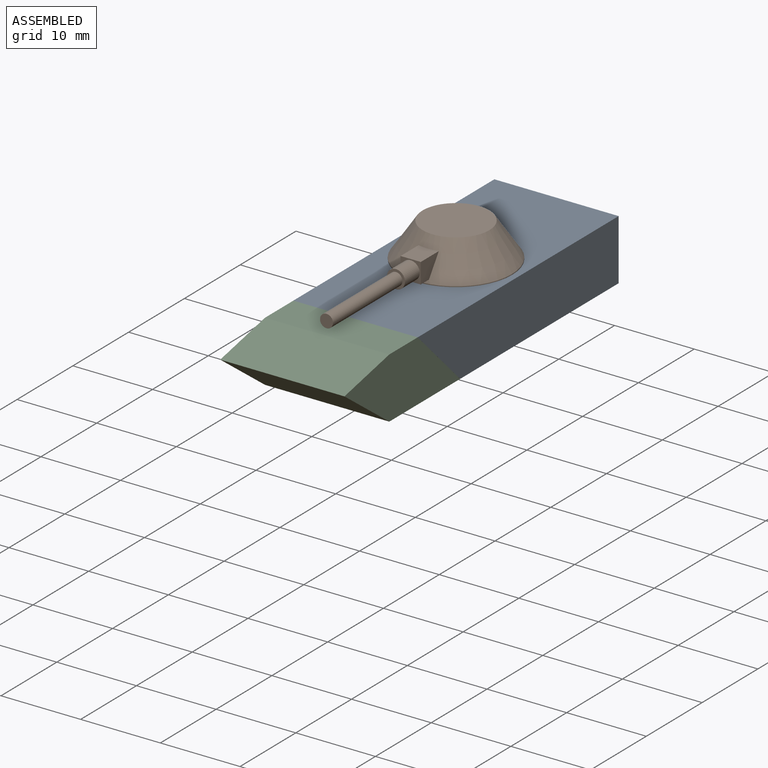
[diagram: assembled view]
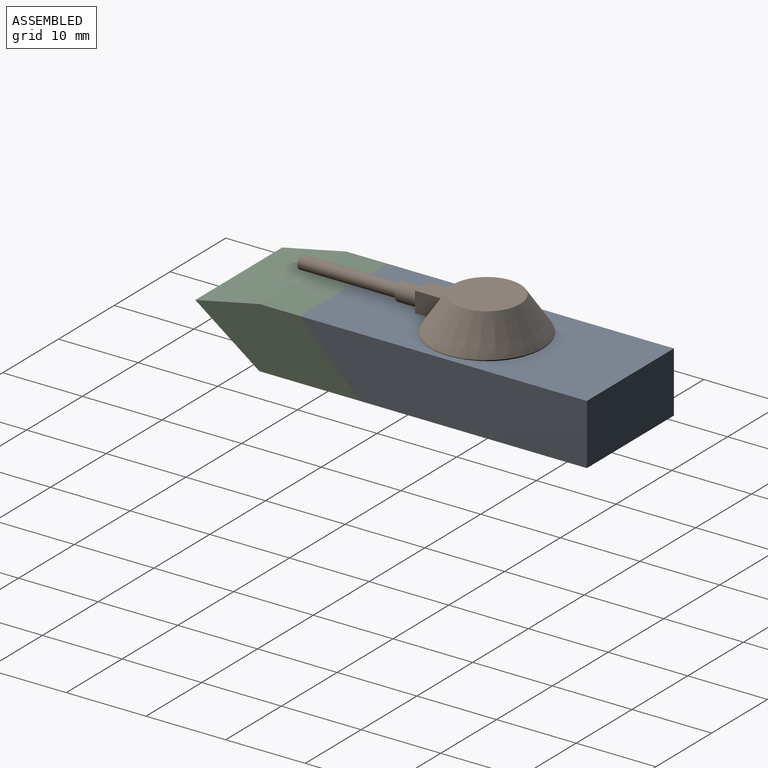
[diagram: assembled view, second angle]
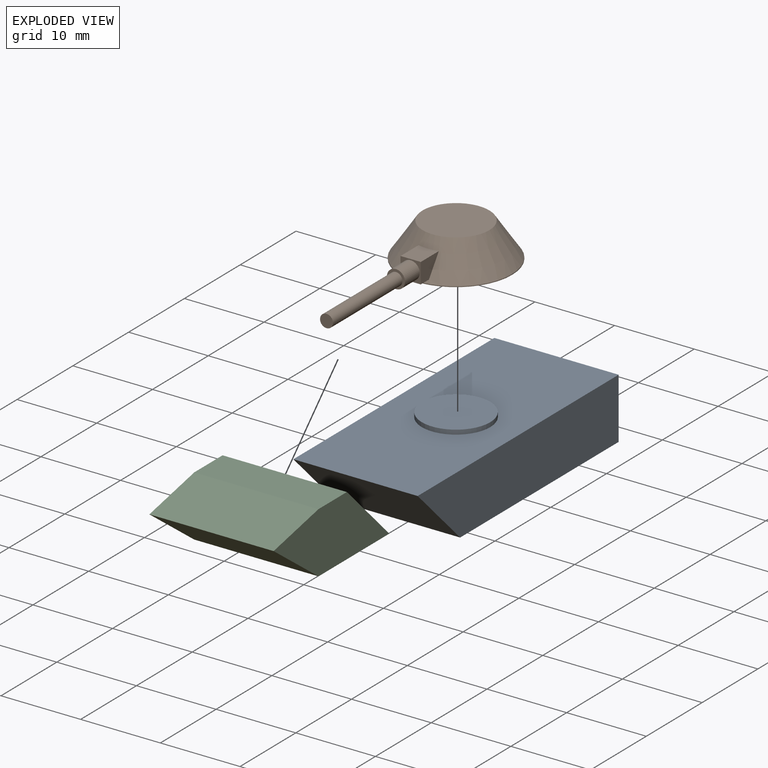
[diagram: exploded view]
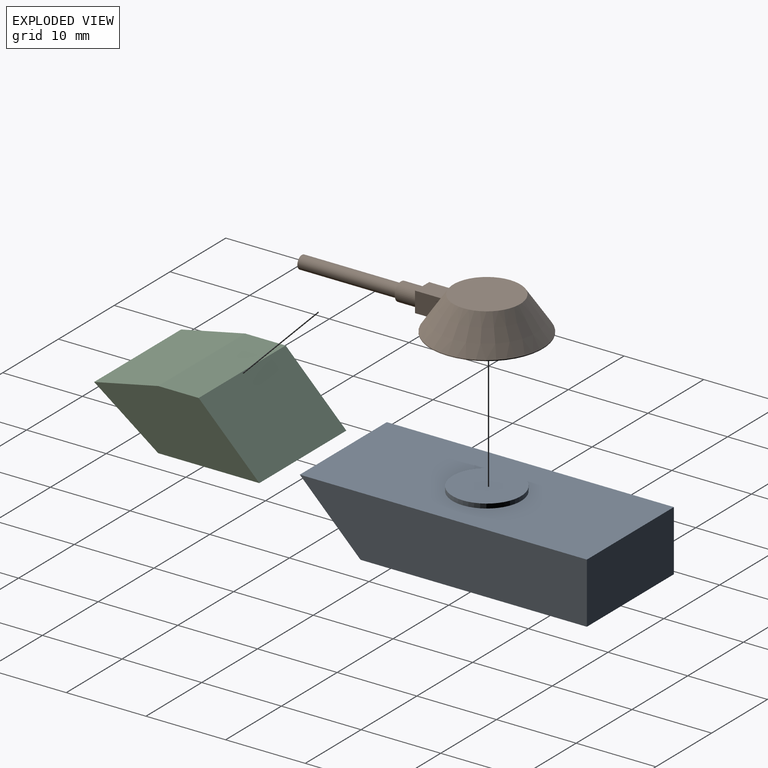
[diagram: exploded view, second angle]
ASSEMBLY  parts=3 mates=2
PART A: 8 faces, bbox 15.6x36x8.2 mm
  f0: plane 36.03x7.62mm, normal (1,0,0), area 245.5mm2, adj f1,f3,f4,f5
  f1: plane 15.6x7.62mm, normal (0,1,0), area 118.9mm2, adj f0,f2,f3,f4
  f2: plane 36.03x7.62mm, normal (-1,0,0), area 245.5mm2, adj f1,f3,f4,f5
  f3: plane 36.03x15.6mm, normal (0,0,1), area 504.2mm2, adj f0,f1,f2,f5,f6
  f4: plane 28.41x15.6mm, normal (0,0,-1), area 443.4mm2, adj f0,f1,f2,f5
  f5: plane 15.6x7.62mm, normal (0,-0.71,-0.71), area 168.2mm2, adj f0,f2,f3,f4
  f6: cylinder r=4.3mm len=8.6mm, axis (0,0,-1), area 15.1mm2, adj f3,f7
  f7: plane 8.6x8.6mm, normal (0,0,1), area 58.1mm2, adj f6
PART B: 15 faces, bbox 14.1x30.3x4.4 mm
  f0: cone r=4.19mm half-angle=34deg, axis (0,0,-1), area 171.4mm2, adj f1,f2,f4,f5,f6,f7
  f1: cylinder r=7.04mm len=14.07mm, axis (0,0,-1), area 4.4mm2, adj f0,f3
  f2: plane 8.38x8.38mm, normal (0,0,1), area 55.2mm2, adj f0
  f3: plane 14.07x14.07mm, normal (0,0,-1), area 86.2mm2, adj f1,f11
  f4: plane 3.29x2.61mm, normal (1,0,0), area 6mm2, adj f0,f5,f7,f8
  f5: plane 3.23x2.54mm, normal (0,0,1), area 7.9mm2, adj f0,f4,f6,f8
  f6: plane 3.29x2.61mm, normal (-1,0,0), area 6mm2, adj f0,f5,f7,f8
  f7: plane 2.54x1.47mm, normal (0,0,-1), area 3.5mm2, adj f0,f4,f6,f8
  f8: plane 2.55x2.54mm, normal (0,-1,0), area 2.4mm2, adj f4,f5,f6,f7,f9
  f9: cylinder r=1.14mm len=2.64mm, axis (0,1,0), area 18.8mm2, adj f8,f10
  f10: plane 2.27x2.27mm, normal (0,-1,0), area 2mm2, adj f9,f13
  f11: cylinder r=4.7mm len=9.39mm, axis (0,0,-1), area 16.5mm2, adj f3,f12
  f12: plane 9.39x9.39mm, normal (0,0,-1), area 69.3mm2, adj f11
  f13: cylinder r=0.81mm len=12.45mm, axis (0,1,0), area 63.6mm2, adj f10,f14
  f14: plane 1.63x1.63mm, normal (0,-1,0), area 2.1mm2, adj f13
PART C: 7 faces, bbox 15.6x20.7x7.6 mm
  f0: plane 15.6x5.08mm, normal (0,0,1), area 79.2mm2, adj f1,f4,f5,f6
  f1: plane 15.6x8.04mm, normal (0,-0.21,0.98), area 128.1mm2, adj f0,f2,f4,f5
  f2: plane 15.6x8.04mm, normal (0,-0.59,-0.8), area 155.8mm2, adj f1,f3,f4,f5
  f3: plane 15.6x12.7mm, normal (0,0,-1), area 198.1mm2, adj f2,f4,f5,f6
  f4: plane 20.74x7.62mm, normal (1,0,0), area 98.4mm2, adj f0,f1,f2,f3,f6
  f5: plane 20.74x7.62mm, normal (-1,0,0), area 98.4mm2, adj f0,f1,f2,f3,f6
  f6: plane 15.6x7.62mm, normal (0,0.71,0.71), area 168.1mm2, adj f0,f3,f4,f5
PLACE A t=(-10.23,-2.38,1.21)mm
PLACE B t=(-10.23,-2.38,8.83)mm
PLACE C t=(-18.03,-12.77,1.21)mm
MATE parallel B.f0 <-> A.f6  axis (0,0,-1) through (-10.23,-2.38,9.39)mm
MATE parallel C.f6 <-> A.f5  axis (0,0.71,0.71) through (-10.23,-16.58,5.02)mm
